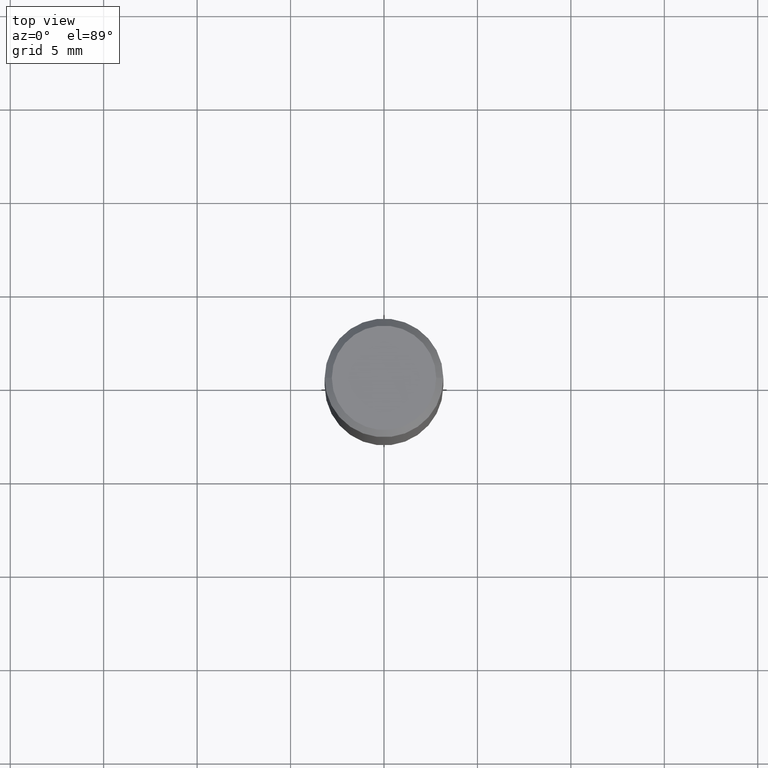
[diagram: clean part render]
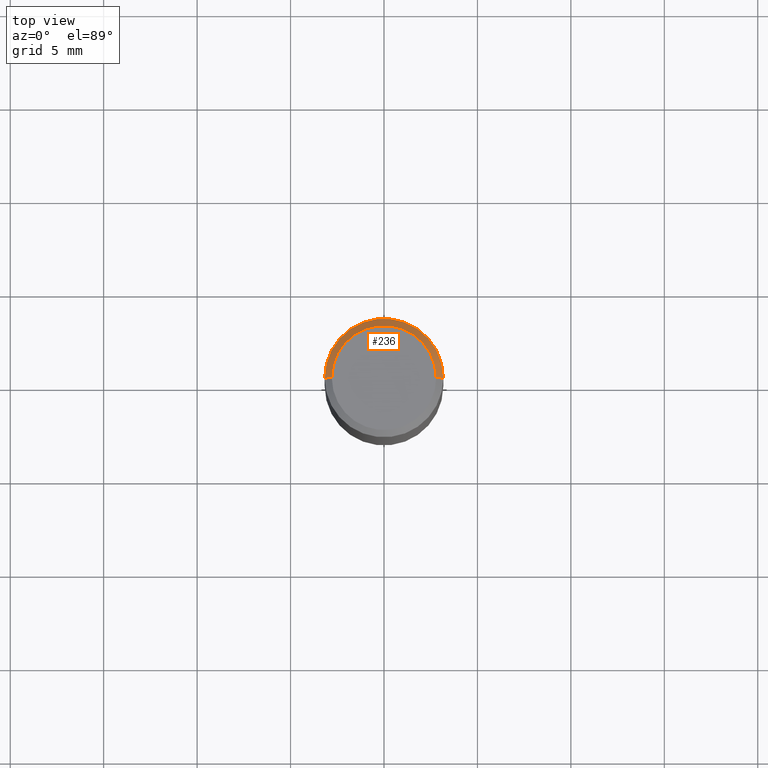
[diagram: same view with one face highlighted and labeled with its STEP entity id]
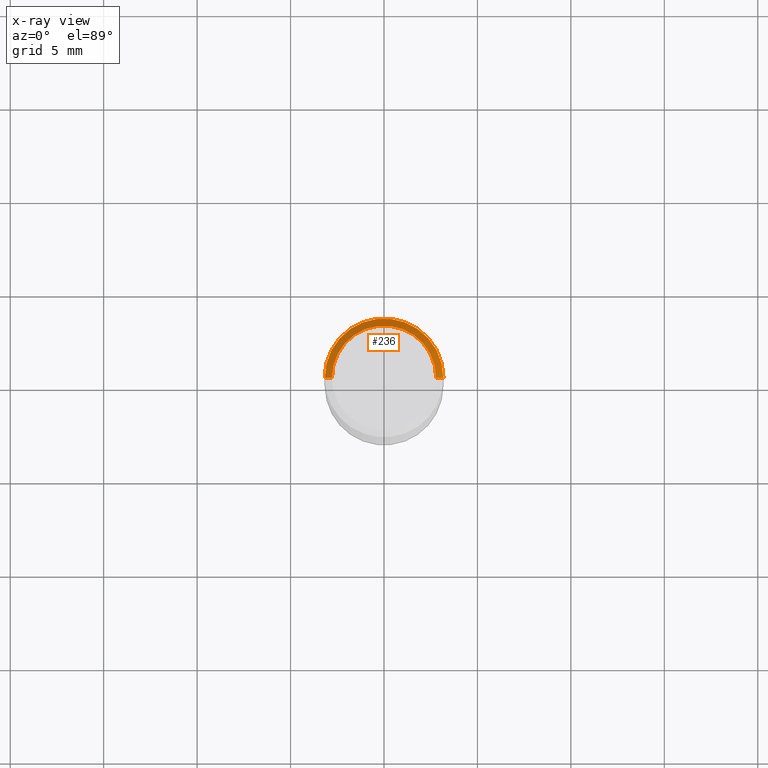
[diagram: x-ray of the same camera — body ghosted, the highlighted face saturated]
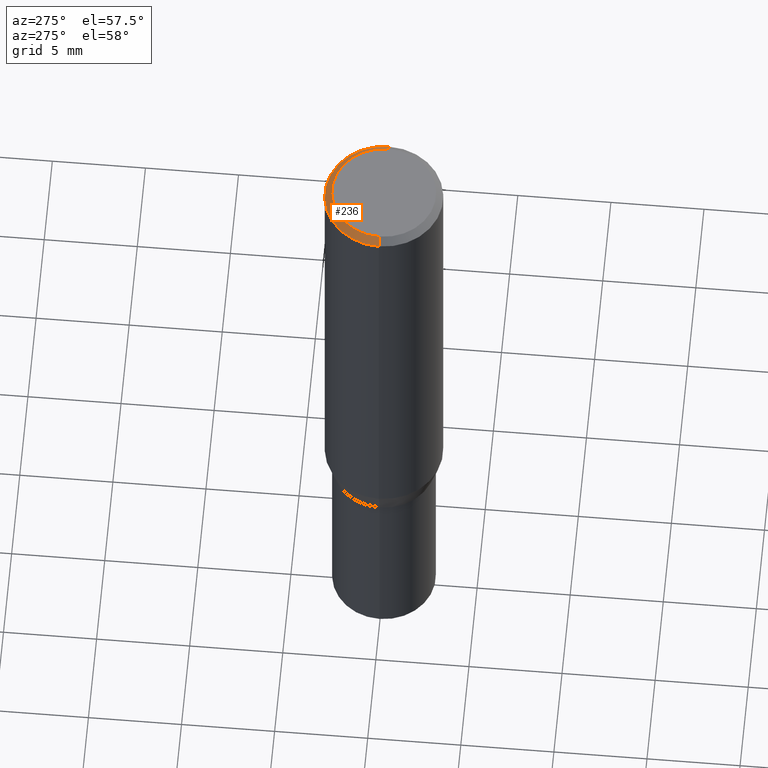
[diagram: same view with one face highlighted and labeled with its STEP entity id]
A machine part, top view. The second image highlights one B-rep face of the part: STEP entity #236.
The next image is the same camera in x-ray: the body ghosted, the highlighted face saturated — about 0% of this face is hidden behind the body in this view.
A second angle (auxiliary view) of the same face is appended — the face is thin or edge-on in the first view.
In plain terms, the highlighted conical surface has half-angle 45 deg.
Its self-contained STEP definition (entity closure, byte-faithful):
#21 = EDGE_CURVE ( 'NONE', #315, #138, #344, .T. ) ;
#22 = EDGE_LOOP ( 'NONE', ( #218, #76, #101, #462 ) ) ;
#34 = LINE ( 'NONE', #178, #440 ) ;
#38 = DIRECTION ( 'NONE',  ( -0.7071067811865475727, 2.468850131082257455E-15, -0.7071067811865474617 ) ) ;
#73 = CARTESIAN_POINT ( 'NONE',  ( 0.1100000000000000006, -8.322946247794786836E-16, -7.674416657715788472E-18 ) ) ;
#76 = ORIENTED_EDGE ( 'NONE', *, *, #436, .T. ) ;
#77 = AXIS2_PLACEMENT_3D ( 'NONE', #278, #282, #313 ) ;
#101 = ORIENTED_EDGE ( 'NONE', *, *, #362, .T. ) ;
#106 = CIRCLE ( 'NONE', #113, 0.1250000000000000000 ) ;
#110 = CARTESIAN_POINT ( 'NONE',  ( 3.668203209277705088E-31, -5.237222008264718399E-17, -0.01499999999999999944 ) ) ;
#113 = AXIS2_PLACEMENT_3D ( 'NONE', #110, #168, #212 ) ;
#114 = VERTEX_POINT ( 'NONE', #157 ) ;
#138 = VERTEX_POINT ( 'NONE', #373 ) ;
#140 = FACE_OUTER_BOUND ( 'NONE', #22, .T. ) ;
#157 = CARTESIAN_POINT ( 'NONE',  ( 0.1250000000000000000, -9.252425547934304180E-16, -0.01499999999999999944 ) ) ;
#168 = DIRECTION ( 'NONE',  ( -2.445468806185136597E-29, 3.491481338843145583E-15, 1.000000000000000000 ) ) ;
#178 = CARTESIAN_POINT ( 'NONE',  ( -0.1250000000000000000, 8.204981146281362596E-16, -0.01499999999999999944 ) ) ;
#212 = DIRECTION ( 'NONE',  ( 1.000000000000000000, -6.982962677686266711E-15, 0.000000000000000000 ) ) ;
#218 = ORIENTED_EDGE ( 'NONE', *, *, #21, .F. ) ;
#225 = VECTOR ( 'NONE', #279, 39.37007874015748143 ) ;
#236 = ADVANCED_FACE ( 'NONE', ( #140 ), #268, .T. ) ;
#268 = CONICAL_SURFACE ( 'NONE', #77, 0.1250000000000000000, 0.7853981633974483900 ) ;
#278 = CARTESIAN_POINT ( 'NONE',  ( 3.668203209277705088E-31, -5.237222008264718399E-17, -0.01499999999999999944 ) ) ;
#279 = DIRECTION ( 'NONE',  ( 0.7071067811865475727, -7.319954787623256045E-15, -0.7071067811865474617 ) ) ;
#282 = DIRECTION ( 'NONE',  ( 2.445468806185136597E-29, -3.491481338843145583E-15, -1.000000000000000000 ) ) ;
#292 = DIRECTION ( 'NONE',  ( 1.000000000000000000, -6.982962677686266711E-15, 4.876001053725558154E-29 ) ) ;
#305 = VERTEX_POINT ( 'NONE', #391 ) ;
#313 = DIRECTION ( 'NONE',  ( -1.000000000000000000, 6.982962677686266711E-15, 0.000000000000000000 ) ) ;
#315 = VERTEX_POINT ( 'NONE', #73 ) ;
#316 = LINE ( 'NONE', #463, #225 ) ;
#344 = CIRCLE ( 'NONE', #385, 0.1100000000000000006 ) ;
#362 = EDGE_CURVE ( 'NONE', #114, #305, #106, .T. ) ;
#368 = CARTESIAN_POINT ( 'NONE',  ( 1.876754654212523840E-46, -2.679508254694119990E-32, -7.674416657721384454E-18 ) ) ;
#373 = CARTESIAN_POINT ( 'NONE',  ( -0.1100000000000000006, 7.943120045868128186E-16, -7.674416657726847932E-18 ) ) ;
#385 = AXIS2_PLACEMENT_3D ( 'NONE', #368, #439, #292 ) ;
#391 = CARTESIAN_POINT ( 'NONE',  ( -0.1250000000000000000, -8.920930130844498047E-16, -0.01499999999999999944 ) ) ;
#435 = EDGE_CURVE ( 'NONE', #138, #305, #34, .T. ) ;
#436 = EDGE_CURVE ( 'NONE', #315, #114, #316, .T. ) ;
#439 = DIRECTION ( 'NONE',  ( -2.445468806185136597E-29, 3.491481338843145583E-15, 1.000000000000000000 ) ) ;
#440 = VECTOR ( 'NONE', #38, 39.37007874015748143 ) ;
#462 = ORIENTED_EDGE ( 'NONE', *, *, #435, .F. ) ;
#463 = CARTESIAN_POINT ( 'NONE',  ( 0.1250000000000000000, -9.099344698040885245E-16, -0.01499999999999999944 ) ) ;